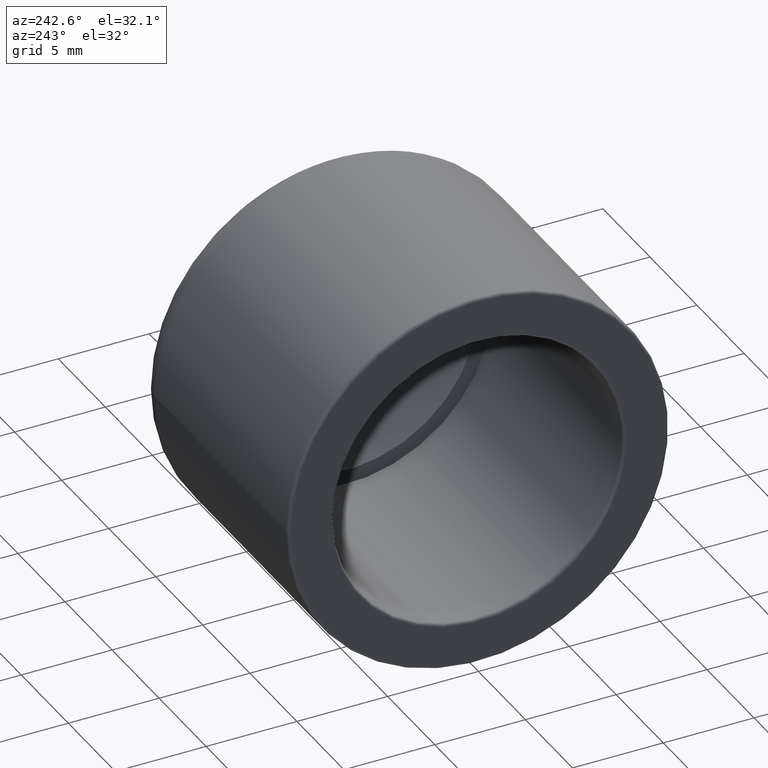
[diagram: clean part render]
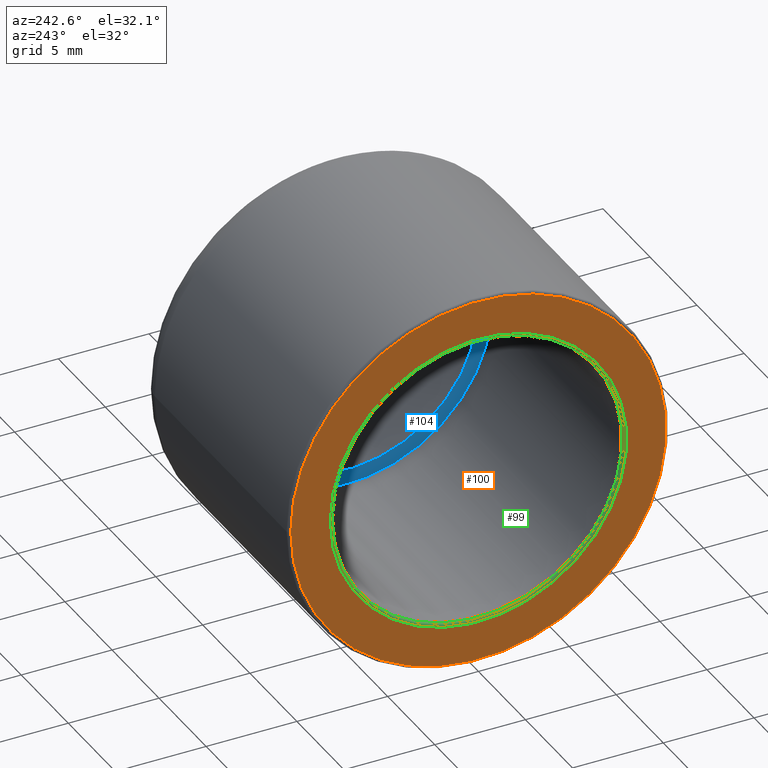
[diagram: same view with three faces highlighted in distinct colors, each labeled with its STEP entity id]
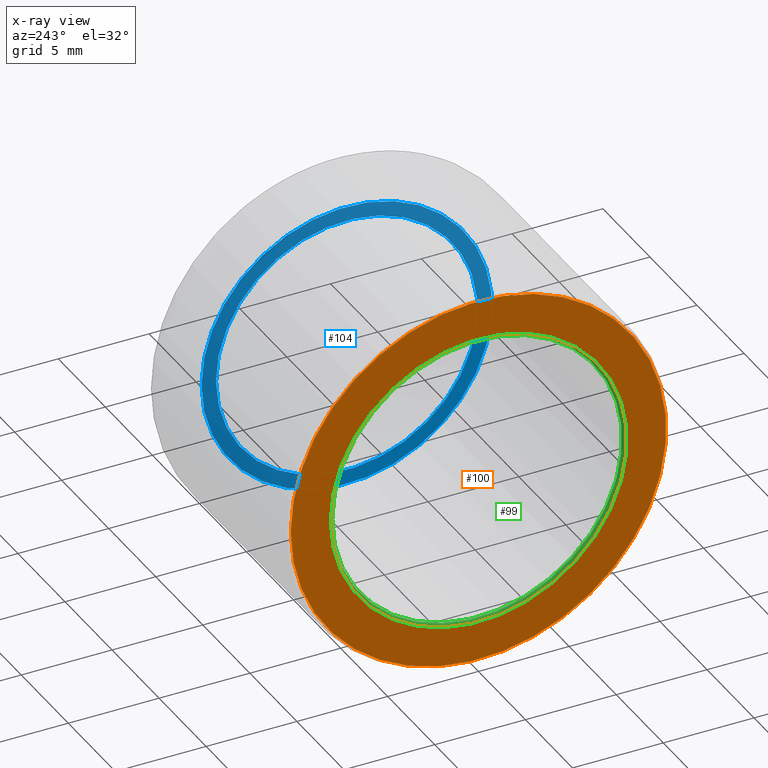
[diagram: x-ray of the same camera — body ghosted, the three highlighted faces saturated]
A machine part, auxiliary view with three faces highlighted in distinct colors.
The next image is the same camera in x-ray (body ghosted, the three faces saturated) — at least one of them is partly hidden behind the body in this view.
Their STEP definitions:

[orange] entity #100 — the highlighted planar face has unit normal (-1, -0, 0).
#15=PLANE('',#116);
#24=FACE_BOUND('',#45,.T.);
#32=FACE_OUTER_BOUND('',#44,.T.);
#44=EDGE_LOOP('',(#84));
#45=EDGE_LOOP('',(#85));
#57=CIRCLE('',#115,8.15999999999999);
#58=CIRCLE('',#117,10.34);
#65=VERTEX_POINT('',#173);
#66=VERTEX_POINT('',#176);
#73=EDGE_CURVE('',#65,#65,#57,.T.);
#74=EDGE_CURVE('',#66,#66,#58,.T.);
#84=ORIENTED_EDGE('',*,*,#74,.F.);
#85=ORIENTED_EDGE('',*,*,#73,.F.);
#100=ADVANCED_FACE('',(#32,#24),#15,.T.);
#115=AXIS2_PLACEMENT_3D('',#174,#142,#143);
#116=AXIS2_PLACEMENT_3D('',#175,#144,#145);
#117=AXIS2_PLACEMENT_3D('',#177,#146,#147);
#142=DIRECTION('center_axis',(-1.,-2.371856272556E-16,0.));
#143=DIRECTION('ref_axis',(2.371856272556E-16,-1.,1.83697019872103E-16));
#144=DIRECTION('center_axis',(-1.,-2.371856272556E-16,0.));
#145=DIRECTION('ref_axis',(0.,0.,1.));
#146=DIRECTION('center_axis',(1.,2.371856272556E-16,0.));
#147=DIRECTION('ref_axis',(2.37185627255601E-16,-1.,1.83697019872103E-16));
#173=CARTESIAN_POINT('',(-20.,8.15999999999999,-2.4982794702606E-15));
#174=CARTESIAN_POINT('Origin',(-20.,-4.74371254511201E-15,0.));
#175=CARTESIAN_POINT('Origin',(-20.,10.5,0.));
#176=CARTESIAN_POINT('',(-20.,10.34,-6.33142395159181E-16));
#177=CARTESIAN_POINT('Origin',(-20.,-4.74371254511201E-15,0.));

[blue] entity #104 — the highlighted planar face has unit normal (-1, -0, 0).
#16=PLANE('',#123);
#27=FACE_BOUND('',#52,.T.);
#36=FACE_OUTER_BOUND('',#51,.T.);
#51=EDGE_LOOP('',(#91));
#52=EDGE_LOOP('',(#92));
#59=CIRCLE('',#119,7.99999999999999);
#60=CIRCLE('',#122,7.2);
#67=VERTEX_POINT('',#179);
#68=VERTEX_POINT('',#183);
#75=EDGE_CURVE('',#67,#67,#59,.T.);
#76=EDGE_CURVE('',#68,#68,#60,.T.);
#91=ORIENTED_EDGE('',*,*,#75,.F.);
#92=ORIENTED_EDGE('',*,*,#76,.T.);
#104=ADVANCED_FACE('',(#36,#27),#16,.T.);
#119=AXIS2_PLACEMENT_3D('',#180,#150,#151);
#122=AXIS2_PLACEMENT_3D('',#184,#156,#157);
#123=AXIS2_PLACEMENT_3D('',#185,#158,#159);
#150=DIRECTION('center_axis',(1.,2.371856272556E-16,0.));
#151=DIRECTION('ref_axis',(0.,0.,-1.));
#156=DIRECTION('center_axis',(1.,2.371856272556E-16,0.));
#157=DIRECTION('ref_axis',(0.,0.,-1.));
#158=DIRECTION('center_axis',(-1.,-2.371856272556E-16,0.));
#159=DIRECTION('ref_axis',(0.,0.,1.));
#179=CARTESIAN_POINT('',(-6.,7.99999999999999,0.));
#180=CARTESIAN_POINT('Origin',(-6.,-1.4231137635336E-15,0.));
#183=CARTESIAN_POINT('',(-6.,7.2,0.));
#184=CARTESIAN_POINT('Origin',(-6.,-1.4231137635336E-15,0.));
#185=CARTESIAN_POINT('Origin',(-6.,7.99999999999999,0.));

[green] entity #99 — the highlighted toroidal blend (fillet) surface has major radius 8.16 mm and minor (blend) radius 0.16 mm.
#23=FACE_BOUND('',#43,.T.);
#31=FACE_OUTER_BOUND('',#42,.T.);
#42=EDGE_LOOP('',(#82));
#43=EDGE_LOOP('',(#83));
#56=CIRCLE('',#114,7.99999999999999);
#57=CIRCLE('',#115,8.15999999999999);
#64=VERTEX_POINT('',#171);
#65=VERTEX_POINT('',#173);
#72=EDGE_CURVE('',#64,#64,#56,.T.);
#73=EDGE_CURVE('',#65,#65,#57,.T.);
#82=ORIENTED_EDGE('',*,*,#72,.T.);
#83=ORIENTED_EDGE('',*,*,#73,.T.);
#94=TOROIDAL_SURFACE('',#113,8.15999999999999,0.16);
#99=ADVANCED_FACE('',(#31,#23),#94,.T.);
#113=AXIS2_PLACEMENT_3D('',#170,#138,#139);
#114=AXIS2_PLACEMENT_3D('',#172,#140,#141);
#115=AXIS2_PLACEMENT_3D('',#174,#142,#143);
#138=DIRECTION('center_axis',(1.,2.371856272556E-16,0.));
#139=DIRECTION('ref_axis',(0.,0.,-1.));
#140=DIRECTION('center_axis',(1.,2.371856272556E-16,0.));
#141=DIRECTION('ref_axis',(2.38524477946811E-16,-1.,1.83697019872103E-16));
#142=DIRECTION('center_axis',(-1.,-2.371856272556E-16,0.));
#143=DIRECTION('ref_axis',(2.371856272556E-16,-1.,1.83697019872103E-16));
#170=CARTESIAN_POINT('Origin',(-19.84,-4.70576284475111E-15,0.));
#171=CARTESIAN_POINT('',(-19.84,7.99999999999999,-4.89858719658941E-16));
#172=CARTESIAN_POINT('Origin',(-19.84,-4.70576284475111E-15,0.));
#173=CARTESIAN_POINT('',(-20.,8.15999999999999,-2.4982794702606E-15));
#174=CARTESIAN_POINT('Origin',(-20.,-4.74371254511201E-15,0.));